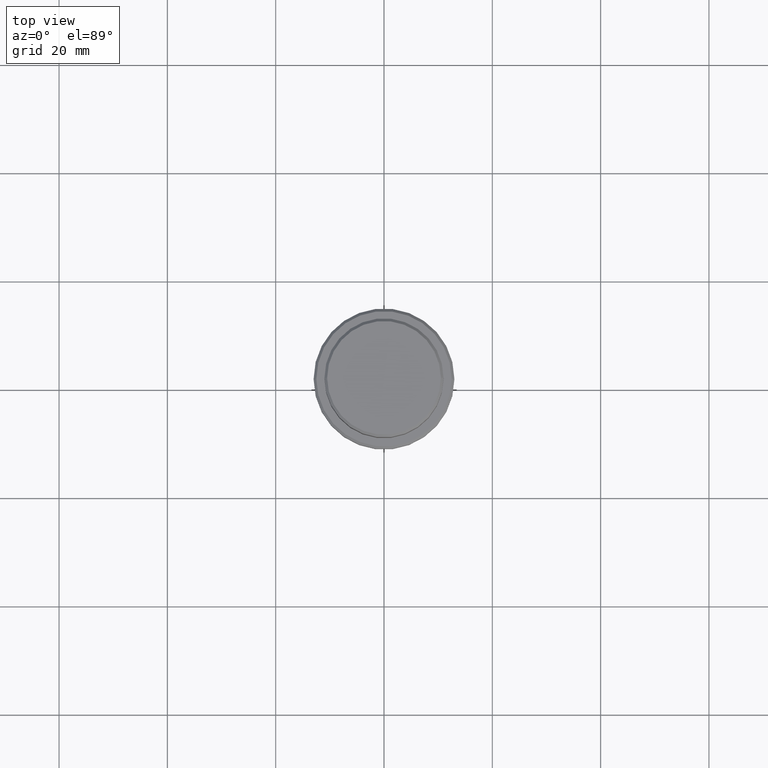
[diagram: clean part render]
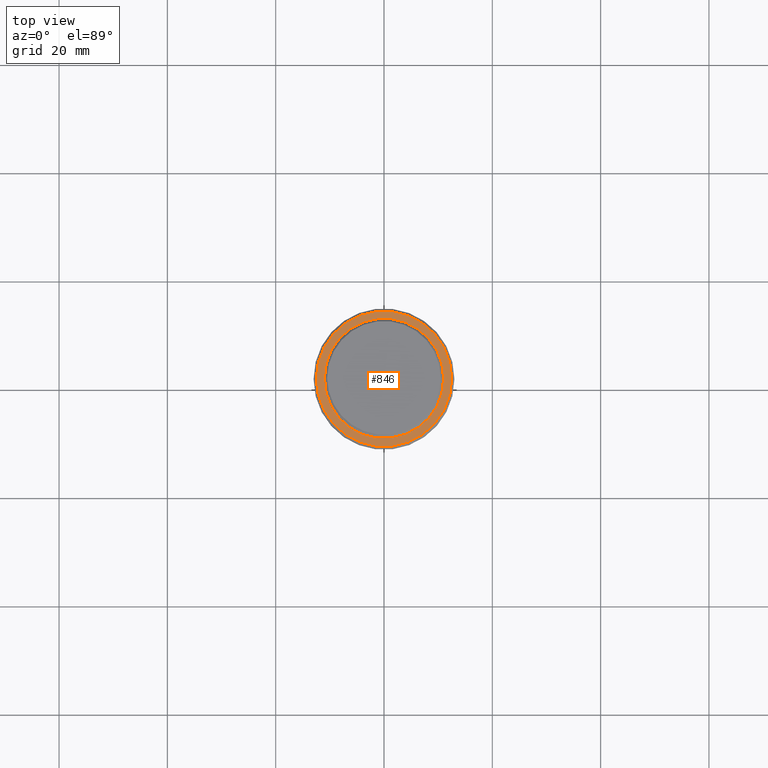
[diagram: same view with one face highlighted and labeled with its STEP entity id]
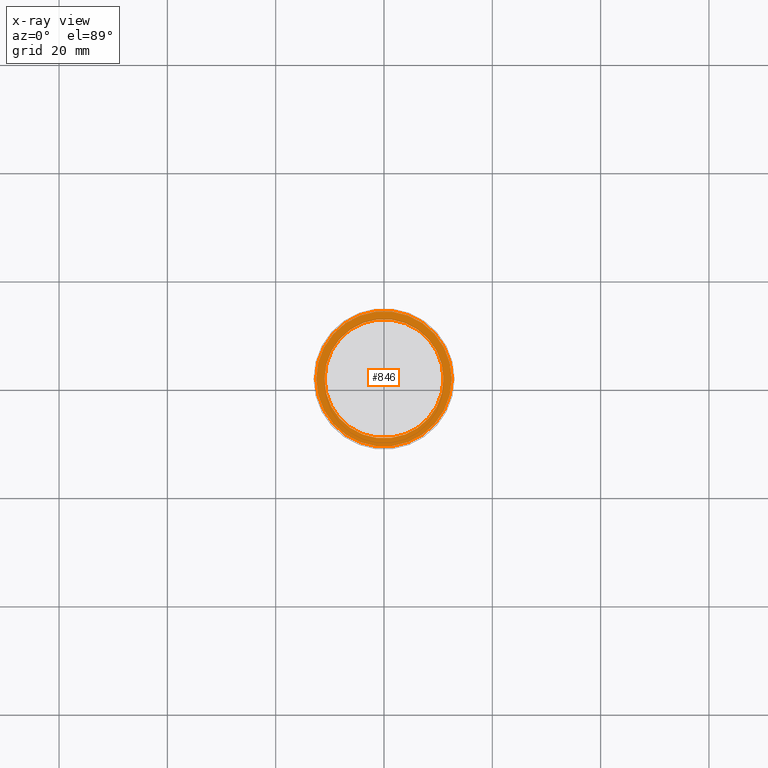
[diagram: x-ray of the same camera — body ghosted, the highlighted face saturated]
A machine part, top view. The second image highlights one B-rep face of the part: STEP entity #846.
The next image is the same camera in x-ray: the body ghosted, the highlighted face saturated — about 0% of this face is hidden behind the body in this view.
In plain terms, the highlighted planar face has unit normal (0, -0, 1).
Its self-contained STEP definition (entity closure, byte-faithful):
#26 = VERTEX_POINT ( 'NONE', #701 ) ;
#51 = PLANE ( 'NONE',  #802 ) ;
#94 = DIRECTION ( 'NONE',  ( 1.000000000000000000, 0.000000000000000000, 0.000000000000000000 ) ) ;
#144 = FACE_BOUND ( 'NONE', #904, .T. ) ;
#146 = AXIS2_PLACEMENT_3D ( 'NONE', #854, #979, #1293 ) ;
#156 = CARTESIAN_POINT ( 'NONE',  ( 0.000000000000000000, 0.000000000000000000, -10.00000000000000000 ) ) ;
#171 = AXIS2_PLACEMENT_3D ( 'NONE', #156, #491, #265 ) ;
#172 = VERTEX_POINT ( 'NONE', #481 ) ;
#184 = CARTESIAN_POINT ( 'NONE',  ( -12.49999999999998401, 0.000000000000000000, -10.00000000000000000 ) ) ;
#204 = ORIENTED_EDGE ( 'NONE', *, *, #1347, .T. ) ;
#264 = VERTEX_POINT ( 'NONE', #1297 ) ;
#265 = DIRECTION ( 'NONE',  ( 1.000000000000000000, 0.000000000000000000, 0.000000000000000000 ) ) ;
#285 = EDGE_CURVE ( 'NONE', #26, #172, #553, .T. ) ;
#357 = DIRECTION ( 'NONE',  ( 0.000000000000000000, 0.000000000000000000, -1.000000000000000000 ) ) ;
#445 = CIRCLE ( 'NONE', #1292, 10.99999999999996625 ) ;
#476 = FACE_OUTER_BOUND ( 'NONE', #803, .T. ) ;
#481 = CARTESIAN_POINT ( 'NONE',  ( 10.99999999999996625, 0.000000000000000000, -10.00000000000000000 ) ) ;
#482 = CARTESIAN_POINT ( 'NONE',  ( 0.000000000000000000, 0.000000000000000000, -10.00000000000000000 ) ) ;
#491 = DIRECTION ( 'NONE',  ( -0.000000000000000000, -0.000000000000000000, 1.000000000000000000 ) ) ;
#497 = CIRCLE ( 'NONE', #146, 12.49999999999998401 ) ;
#553 = CIRCLE ( 'NONE', #806, 10.99999999999996625 ) ;
#654 = VERTEX_POINT ( 'NONE', #184 ) ;
#675 = ORIENTED_EDGE ( 'NONE', *, *, #1257, .T. ) ;
#678 = EDGE_CURVE ( 'NONE', #654, #264, #778, .T. ) ;
#701 = CARTESIAN_POINT ( 'NONE',  ( -10.99999999999996625, 1.347111479062084460E-15, -10.00000000000000000 ) ) ;
#748 = DIRECTION ( 'NONE',  ( 0.000000000000000000, 0.000000000000000000, -1.000000000000000000 ) ) ;
#778 = CIRCLE ( 'NONE', #171, 12.49999999999998401 ) ;
#802 = AXIS2_PLACEMENT_3D ( 'NONE', #1117, #1133, #1009 ) ;
#803 = EDGE_LOOP ( 'NONE', ( #1318, #675 ) ) ;
#806 = AXIS2_PLACEMENT_3D ( 'NONE', #976, #748, #94 ) ;
#846 = ADVANCED_FACE ( 'NONE', ( #476, #144 ), #51, .T. ) ;
#854 = CARTESIAN_POINT ( 'NONE',  ( 0.000000000000000000, 0.000000000000000000, -10.00000000000000000 ) ) ;
#904 = EDGE_LOOP ( 'NONE', ( #204, #1401 ) ) ;
#976 = CARTESIAN_POINT ( 'NONE',  ( 0.000000000000000000, 0.000000000000000000, -10.00000000000000000 ) ) ;
#979 = DIRECTION ( 'NONE',  ( -0.000000000000000000, -0.000000000000000000, 1.000000000000000000 ) ) ;
#1009 = DIRECTION ( 'NONE',  ( 1.000000000000000000, 0.000000000000000000, 0.000000000000000000 ) ) ;
#1117 = CARTESIAN_POINT ( 'NONE',  ( 0.000000000000000000, 10.49999999999996625, -10.00000000000000000 ) ) ;
#1133 = DIRECTION ( 'NONE',  ( 0.000000000000000000, -0.000000000000000000, 1.000000000000000000 ) ) ;
#1212 = DIRECTION ( 'NONE',  ( 1.000000000000000000, 0.000000000000000000, 0.000000000000000000 ) ) ;
#1257 = EDGE_CURVE ( 'NONE', #264, #654, #497, .T. ) ;
#1292 = AXIS2_PLACEMENT_3D ( 'NONE', #482, #357, #1212 ) ;
#1293 = DIRECTION ( 'NONE',  ( 1.000000000000000000, 0.000000000000000000, 0.000000000000000000 ) ) ;
#1297 = CARTESIAN_POINT ( 'NONE',  ( 12.49999999999998401, 1.561424668912874125E-15, -10.00000000000000000 ) ) ;
#1318 = ORIENTED_EDGE ( 'NONE', *, *, #678, .T. ) ;
#1347 = EDGE_CURVE ( 'NONE', #172, #26, #445, .T. ) ;
#1401 = ORIENTED_EDGE ( 'NONE', *, *, #285, .T. ) ;